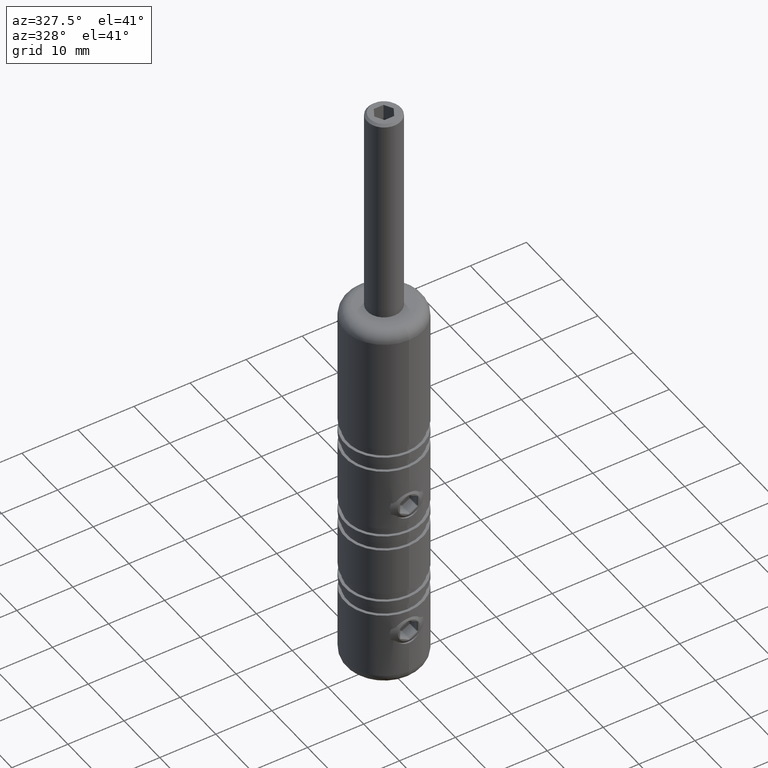
[diagram: clean part render]
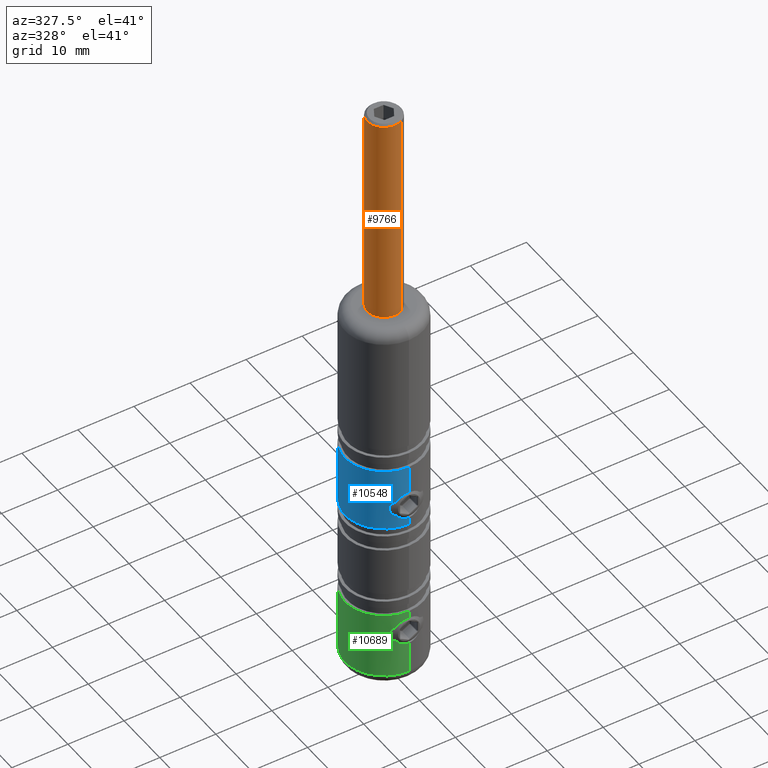
[diagram: same view with three faces highlighted in distinct colors, each labeled with its STEP entity id]
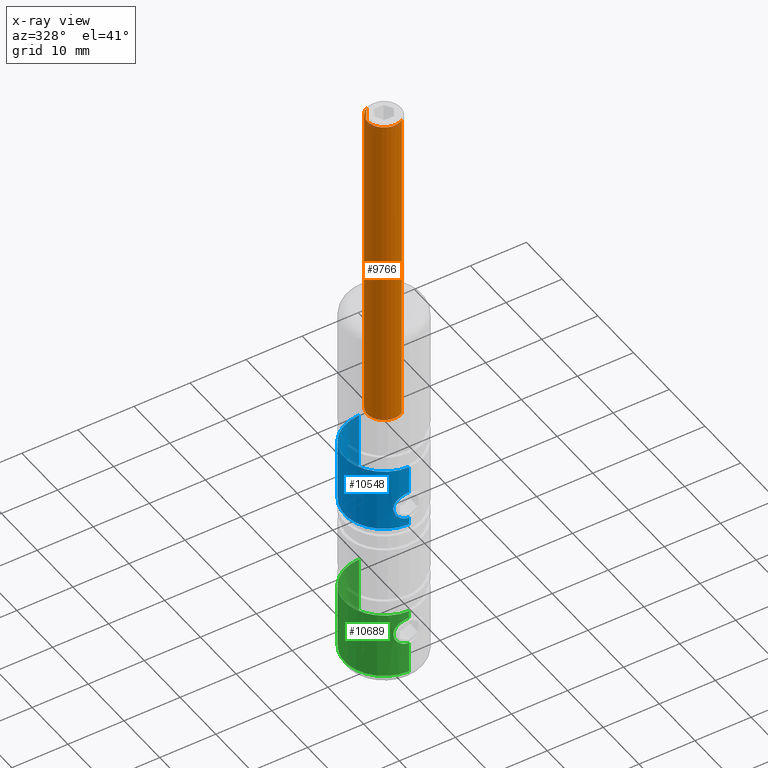
[diagram: x-ray of the same camera — body ghosted, the three highlighted faces saturated]
A machine part, auxiliary view with three faces highlighted in distinct colors.
The next image is the same camera in x-ray (body ghosted, the three faces saturated) — at least one of them is partly hidden behind the body in this view.
Their STEP definitions:

[orange] entity #9766 — the highlighted cylindrical surface (edge-blend (fillet) strip) has radius 3 mm, axis along (0, 0, 1).
#64 = DIRECTION ( 'NONE',  ( -1.000000000000000000, 0.0000000000000000000, 0.0000000000000000000 ) ) ;
#600 = CIRCLE ( 'NONE', #2382, 3.000000000000000000 ) ;
#644 = CARTESIAN_POINT ( 'NONE',  ( 3.000000000000000000, 0.0000000000000000000, -58.75000000000000000 ) ) ;
#971 = DIRECTION ( 'NONE',  ( 1.000000000000000000, 0.0000000000000000000, 0.0000000000000000000 ) ) ;
#1038 = CARTESIAN_POINT ( 'NONE',  ( 0.0000000000000000000, 0.0000000000000000000, -58.75000000000000000 ) ) ;
#2249 = DIRECTION ( 'NONE',  ( -0.0000000000000000000, -0.0000000000000000000, 1.000000000000000000 ) ) ;
#2382 = AXIS2_PLACEMENT_3D ( 'NONE', #12955, #5168, #64 ) ;
#2387 = DIRECTION ( 'NONE',  ( -0.0000000000000000000, -0.0000000000000000000, 1.000000000000000000 ) ) ;
#2526 = CYLINDRICAL_SURFACE ( 'NONE', #4589, 3.000000000000000000 ) ;
#3692 = DIRECTION ( 'NONE',  ( -0.0000000000000000000, -0.0000000000000000000, 1.000000000000000000 ) ) ;
#4059 = EDGE_CURVE ( 'NONE', #11626, #13936, #600, .T. ) ;
#4589 = AXIS2_PLACEMENT_3D ( 'NONE', #8961, #16824, #11760 ) ;
#5168 = DIRECTION ( 'NONE',  ( 0.0000000000000000000, 0.0000000000000000000, -1.000000000000000000 ) ) ;
#5259 = AXIS2_PLACEMENT_3D ( 'NONE', #1038, #3692, #971 ) ;
#5452 = ORIENTED_EDGE ( 'NONE', *, *, #10926, .T. ) ;
#5901 = ORIENTED_EDGE ( 'NONE', *, *, #10411, .T. ) ;
#5991 = LINE ( 'NONE', #7425, #10035 ) ;
#6250 = VERTEX_POINT ( 'NONE', #16569 ) ;
#6269 = ORIENTED_EDGE ( 'NONE', *, *, #9319, .F. ) ;
#6461 = ORIENTED_EDGE ( 'NONE', *, *, #4059, .T. ) ;
#7425 = CARTESIAN_POINT ( 'NONE',  ( 3.000000000000000000, 0.0000000000000000000, 0.0000000000000000000 ) ) ;
#8961 = CARTESIAN_POINT ( 'NONE',  ( 0.0000000000000000000, 0.0000000000000000000, 0.0000000000000000000 ) ) ;
#9260 = EDGE_LOOP ( 'NONE', ( #6269, #5901, #5452, #6461 ) ) ;
#9319 = EDGE_CURVE ( 'NONE', #6250, #13936, #9526, .T. ) ;
#9526 = LINE ( 'NONE', #12882, #16687 ) ;
#9766 = ADVANCED_FACE ( 'NONE', ( #13326 ), #2526, .T. ) ;
#10035 = VECTOR ( 'NONE', #2249, 1000.000000000000000 ) ;
#10239 = CIRCLE ( 'NONE', #5259, 3.000000000000000000 ) ;
#10411 = EDGE_CURVE ( 'NONE', #6250, #14971, #10239, .T. ) ;
#10926 = EDGE_CURVE ( 'NONE', #14971, #11626, #5991, .T. ) ;
#11626 = VERTEX_POINT ( 'NONE', #12357 ) ;
#11760 = DIRECTION ( 'NONE',  ( 1.000000000000000000, 0.0000000000000000000, 0.0000000000000000000 ) ) ;
#12357 = CARTESIAN_POINT ( 'NONE',  ( 3.000000000000000000, 0.0000000000000000000, -0.4000000000000015200 ) ) ;
#12882 = CARTESIAN_POINT ( 'NONE',  ( -3.000000000000000000, 3.673940397442059900E-016, 0.0000000000000000000 ) ) ;
#12955 = CARTESIAN_POINT ( 'NONE',  ( 0.0000000000000000000, 0.0000000000000000000, -0.4000000000000015200 ) ) ;
#13326 = FACE_OUTER_BOUND ( 'NONE', #9260, .T. ) ;
#13755 = CARTESIAN_POINT ( 'NONE',  ( -3.000000000000000000, 3.673940397442059900E-016, -0.4000000000000015200 ) ) ;
#13936 = VERTEX_POINT ( 'NONE', #13755 ) ;
#14971 = VERTEX_POINT ( 'NONE', #644 ) ;
#16569 = CARTESIAN_POINT ( 'NONE',  ( -3.000000000000000000, 3.673940397442059900E-016, -58.75000000000000000 ) ) ;
#16687 = VECTOR ( 'NONE', #2387, 1000.000000000000000 ) ;
#16824 = DIRECTION ( 'NONE',  ( -0.0000000000000000000, -0.0000000000000000000, 1.000000000000000000 ) ) ;

[blue] entity #10548 — the highlighted cylindrical surface (partial cylindrical patch) has radius 7 mm, axis along (0, 0, 1).
#86 = DIRECTION ( 'NONE',  ( -0.0000000000000000000, 5.987083850887820200E-017, 1.000000000000000000 ) ) ;
#120 = CARTESIAN_POINT ( 'NONE',  ( 0.0000000000000000000, -6.999999999999982200, -2.350000000000001400 ) ) ;
#136 = VERTEX_POINT ( 'NONE', #16595 ) ;
#191 = CARTESIAN_POINT ( 'NONE',  ( -2.182616585610912100, -6.652348402511699500, -1.111729387293352700 ) ) ;
#239 = LINE ( 'NONE', #4779, #11422 ) ;
#301 = CARTESIAN_POINT ( 'NONE',  ( -1.986513075921680000, -6.712875637094597000, 1.676451359799915100 ) ) ;
#348 = DIRECTION ( 'NONE',  ( -0.0000000000000000000, 5.987083850887820200E-017, 1.000000000000000000 ) ) ;
#357 = CARTESIAN_POINT ( 'NONE',  ( -2.418957270324506600, -6.568853193062357900, 0.8023704080797742200 ) ) ;
#406 = CARTESIAN_POINT ( 'NONE',  ( -1.997143572992787100, -6.713209561779717800, -1.388159018871960400 ) ) ;
#604 = EDGE_LOOP ( 'NONE', ( #10581, #9806, #16229, #1986, #14866, #16748 ) ) ;
#873 = DIRECTION ( 'NONE',  ( -0.0000000000000000000, 5.987083850887820200E-017, 1.000000000000000000 ) ) ;
#950 = AXIS2_PLACEMENT_3D ( 'NONE', #11561, #10115, #1099 ) ;
#951 = VERTEX_POINT ( 'NONE', #11612 ) ;
#1099 = DIRECTION ( 'NONE',  ( 0.0000000000000000000, -1.000000000000000000, 0.0000000000000000000 ) ) ;
#1111 = AXIS2_PLACEMENT_3D ( 'NONE', #5505, #348, #4219 ) ;
#1448 = VERTEX_POINT ( 'NONE', #15639 ) ;
#1522 = CARTESIAN_POINT ( 'NONE',  ( -0.8113121982069012600, -6.954498449641809200, -2.220354809019988300 ) ) ;
#1573 = VECTOR ( 'NONE', #4252, 1000.000000000000000 ) ;
#1637 = CARTESIAN_POINT ( 'NONE',  ( -2.167036636351883600, -6.656792451069414100, 1.407076040401511200 ) ) ;
#1690 = CARTESIAN_POINT ( 'NONE',  ( -0.8102109664719896500, -6.954611786350691100, 2.520677416910019500 ) ) ;
#1896 = FACE_OUTER_BOUND ( 'NONE', #604, .T. ) ;
#1928 = VERTEX_POINT ( 'NONE', #11458 ) ;
#1986 = ORIENTED_EDGE ( 'NONE', *, *, #16267, .T. ) ;
#2001 = VERTEX_POINT ( 'NONE', #8824 ) ;
#2498 = CARTESIAN_POINT ( 'NONE',  ( 0.0000000000000000000, -6.999999999999982200, -2.350000000000001400 ) ) ;
#3207 = LINE ( 'NONE', #10984, #1573 ) ;
#4174 = CARTESIAN_POINT ( 'NONE',  ( -2.500086800412541600, -6.538315226349094900, 0.3132977657665060900 ) ) ;
#4219 = DIRECTION ( 'NONE',  ( 0.0000000000000000000, -1.000000000000000000, 6.195440985631470100E-017 ) ) ;
#4228 = CARTESIAN_POINT ( 'NONE',  ( -1.798192403797702300E-019, -6.999999999999982200, 2.649999999999993200 ) ) ;
#4252 = DIRECTION ( 'NONE',  ( -0.0000000000000000000, 5.987083850887820200E-017, 1.000000000000000000 ) ) ;
#4779 = CARTESIAN_POINT ( 'NONE',  ( 8.572527594031448500E-016, 6.999999999999980500, 35.00000000000000000 ) ) ;
#5396 = CARTESIAN_POINT ( 'NONE',  ( -0.6517530939081327400, -6.971454749619991500, -2.269109380965464800 ) ) ;
#5457 = CARTESIAN_POINT ( 'NONE',  ( -1.256655774511398000, -6.887662783791753000, -2.017343951924943200 ) ) ;
#5505 = CARTESIAN_POINT ( 'NONE',  ( 0.0000000000000000000, -2.317001450293587300E-015, -3.700000000000009100 ) ) ;
#5514 = CARTESIAN_POINT ( 'NONE',  ( -2.483724230319996000, -6.544639652285172600, -0.1790933315932443600 ) ) ;
#5708 = EDGE_CURVE ( 'NONE', #136, #9869, #7180, .T. ) ;
#6644 = CARTESIAN_POINT ( 'NONE',  ( -2.483487897825190900, -6.544728749842668100, 0.4804985421295853700 ) ) ;
#6698 = CARTESIAN_POINT ( 'NONE',  ( -2.371248968516985300, -6.586477601639736600, 0.9589297162319370100 ) ) ;
#6753 = CARTESIAN_POINT ( 'NONE',  ( -2.244461535863836200, -6.630754201568819000, 1.263364886514609400 ) ) ;
#6789 = EDGE_CURVE ( 'NONE', #2001, #136, #9366, .T. ) ;
#7180 = LINE ( 'NONE', #15229, #9594 ) ;
#7941 = CARTESIAN_POINT ( 'NONE',  ( -0.6540777655606432300, -6.971270671019898800, 2.568582956134533000 ) ) ;
#7992 = CARTESIAN_POINT ( 'NONE',  ( -0.3297201420311631200, -6.994120181978715300, 2.633675878017138300 ) ) ;
#8166 = CARTESIAN_POINT ( 'NONE',  ( -1.652205860208955500, -6.803257230850213100, 2.033237980439071000 ) ) ;
#8565 = DIRECTION ( 'NONE',  ( -0.0000000000000000000, 5.987083850887820200E-017, 1.000000000000000000 ) ) ;
#8824 = CARTESIAN_POINT ( 'NONE',  ( 8.572527594031448500E-016, 6.999999999999978700, -3.700000000000009100 ) ) ;
#9353 = CARTESIAN_POINT ( 'NONE',  ( -2.418985510736147800, -6.568843378357456700, -0.5024550344861887800 ) ) ;
#9366 = CIRCLE ( 'NONE', #1111, 6.999999999999981300 ) ;
#9457 = CARTESIAN_POINT ( 'NONE',  ( -1.257255898599280300, -6.887546679547236600, 2.316967738745832100 ) ) ;
#9594 = VECTOR ( 'NONE', #8565, 1000.000000000000000 ) ;
#9806 = ORIENTED_EDGE ( 'NONE', *, *, #6789, .T. ) ;
#9869 = VERTEX_POINT ( 'NONE', #120 ) ;
#10115 = DIRECTION ( 'NONE',  ( -0.0000000000000000000, 5.987083850887820200E-017, 1.000000000000000000 ) ) ;
#10339 = CARTESIAN_POINT ( 'NONE',  ( -0.1666654329739605500, -6.999999999999982200, -2.350000000000001400 ) ) ;
#10463 = AXIS2_PLACEMENT_3D ( 'NONE', #12871, #86, #14326 ) ;
#10548 = ADVANCED_FACE ( 'NONE', ( #1896 ), #15738, .T. ) ;
#10581 = ORIENTED_EDGE ( 'NONE', *, *, #13452, .F. ) ;
#10739 = CARTESIAN_POINT ( 'NONE',  ( -0.1641597229444208300, -6.999999999999981300, 2.649999999999992800 ) ) ;
#10984 = CARTESIAN_POINT ( 'NONE',  ( 0.0000000000000000000, -6.999999999999980500, 35.00000000000000000 ) ) ;
#11422 = VECTOR ( 'NONE', #873, 1000.000000000000000 ) ;
#11458 = CARTESIAN_POINT ( 'NONE',  ( 8.572527594031448500E-016, 6.999999999999977800, 7.699999999999998400 ) ) ;
#11465 = B_SPLINE_CURVE_WITH_KNOTS ( 'NONE', 3,
 ( #2498, #10339, #14444, #5396, #1522, #13257, #5457, #12059, #15729, #406, #191, #15973, #9353, #5514, #11999, #4174, #6644, #357, #6698, #6753, #1637, #301, #15913, #8166, #15788, #9457, #13132, #1690, #7941, #7992, #10739, #4228 ),
 .UNSPECIFIED., .F., .F.,
 ( 4, 2, 2, 2, 2, 2, 2, 2, 2, 2, 2, 2, 2, 2, 2, 4 ),
 ( 0.0000000000000000000, 0.0004926113832447588500, 0.0009852227664895177000, 0.001477834149734276800, 0.001970445532979035400, 0.002955668299468552200, 0.003448279682713311100, 0.003940891065958069100, 0.004433502449202827500, 0.004926113832447586800, 0.005418725215692345200, 0.005911336598937103600, 0.006403947982181863700, 0.006896559365426622100, 0.007389170748671381400, 0.007881782131916139800 ),
 .UNSPECIFIED. ) ;
#11561 = CARTESIAN_POINT ( 'NONE',  ( 0.0000000000000000000, -1.634473891292375600E-015, 7.699999999999998400 ) ) ;
#11612 = CARTESIAN_POINT ( 'NONE',  ( -1.798192403797702300E-019, -6.999999999999982200, 2.649999999999993200 ) ) ;
#11999 = CARTESIAN_POINT ( 'NONE',  ( -2.499912498922765900, -6.538381872178707300, -0.01594477283448985900 ) ) ;
#12059 = CARTESIAN_POINT ( 'NONE',  ( -1.527415625474456000, -6.832721556297993700, -1.835841143851880500 ) ) ;
#12871 = CARTESIAN_POINT ( 'NONE',  ( 0.0000000000000000000, -3.851859888774471700E-031, 35.00000000000000000 ) ) ;
#13132 = CARTESIAN_POINT ( 'NONE',  ( -1.111092826571013400, -6.912925548549028000, 2.395445602988652400 ) ) ;
#13257 = CARTESIAN_POINT ( 'NONE',  ( -1.113545017333396700, -6.912546105698077700, -2.094287614806861000 ) ) ;
#13452 = EDGE_CURVE ( 'NONE', #2001, #1928, #239, .T. ) ;
#14326 = DIRECTION ( 'NONE',  ( 0.0000000000000000000, -1.000000000000000000, 0.0000000000000000000 ) ) ;
#14444 = CARTESIAN_POINT ( 'NONE',  ( -0.3302835225427129300, -6.994060066667623600, -2.333502584502524300 ) ) ;
#14612 = CIRCLE ( 'NONE', #950, 6.999999999999979600 ) ;
#14866 = ORIENTED_EDGE ( 'NONE', *, *, #15891, .T. ) ;
#15229 = CARTESIAN_POINT ( 'NONE',  ( 0.0000000000000000000, -6.999999999999980500, 35.00000000000000000 ) ) ;
#15639 = CARTESIAN_POINT ( 'NONE',  ( 0.0000000000000000000, -6.999999999999981300, 7.699999999999998400 ) ) ;
#15729 = CARTESIAN_POINT ( 'NONE',  ( -1.654417258820098300, -6.802708637123692400, -1.731231628040283100 ) ) ;
#15738 = CYLINDRICAL_SURFACE ( 'NONE', #10463, 6.999999999999980500 ) ;
#15788 = CARTESIAN_POINT ( 'NONE',  ( -1.527369289322315900, -6.832725277042823300, 2.135846073934975400 ) ) ;
#15891 = EDGE_CURVE ( 'NONE', #951, #1448, #3207, .T. ) ;
#15913 = CARTESIAN_POINT ( 'NONE',  ( -1.881945351263202500, -6.743320758237986800, 1.803678079414452000 ) ) ;
#15973 = CARTESIAN_POINT ( 'NONE',  ( -2.370245848837739800, -6.586829527406433000, -0.6614053658334665400 ) ) ;
#16229 = ORIENTED_EDGE ( 'NONE', *, *, #5708, .T. ) ;
#16267 = EDGE_CURVE ( 'NONE', #9869, #951, #11465, .T. ) ;
#16595 = CARTESIAN_POINT ( 'NONE',  ( 0.0000000000000000000, -6.999999999999984000, -3.700000000000008600 ) ) ;
#16729 = EDGE_CURVE ( 'NONE', #1928, #1448, #14612, .T. ) ;
#16748 = ORIENTED_EDGE ( 'NONE', *, *, #16729, .F. ) ;

[green] entity #10689 — the highlighted cylindrical surface (partial cylindrical patch) has radius 7 mm, axis along (0, 0, 1).
#324 = CARTESIAN_POINT ( 'NONE',  ( -2.500086800412542100, -6.538315226349105600, -24.68670223423349300 ) ) ;
#484 = DIRECTION ( 'NONE',  ( -0.0000000000000000000, 5.987083850887820200E-017, 1.000000000000000000 ) ) ;
#608 = ORIENTED_EDGE ( 'NONE', *, *, #14199, .T. ) ;
#632 = CARTESIAN_POINT ( 'NONE',  ( -1.798191898926723000E-019, -6.999999999999995600, -22.35000000000000900 ) ) ;
#832 = EDGE_CURVE ( 'NONE', #8338, #9932, #16370, .T. ) ;
#905 = FACE_OUTER_BOUND ( 'NONE', #1144, .T. ) ;
#1144 = EDGE_LOOP ( 'NONE', ( #1770, #8280, #608, #9283, #7346, #14786 ) ) ;
#1419 = AXIS2_PLACEMENT_3D ( 'NONE', #4841, #13947, #15371 ) ;
#1548 = CARTESIAN_POINT ( 'NONE',  ( -1.256655774511397500, -6.887662783791766300, -27.01734395192493600 ) ) ;
#1575 = DIRECTION ( 'NONE',  ( -0.0000000000000000000, 5.987083850887820200E-017, 1.000000000000000000 ) ) ;
#1601 = CARTESIAN_POINT ( 'NONE',  ( -2.244461535863836200, -6.630754201568834100, -23.73663511348539100 ) ) ;
#1770 = ORIENTED_EDGE ( 'NONE', *, *, #15977, .F. ) ;
#2086 = CIRCLE ( 'NONE', #1419, 6.999999999999992000 ) ;
#2602 = VERTEX_POINT ( 'NONE', #13484 ) ;
#2739 = CARTESIAN_POINT ( 'NONE',  ( -1.113545017333396500, -6.912546105698083900, -27.09428761480684900 ) ) ;
#2794 = CARTESIAN_POINT ( 'NONE',  ( -2.182616585610913900, -6.652348402511712800, -26.11172938729335200 ) ) ;
#2856 = CARTESIAN_POINT ( 'NONE',  ( -1.997143572992786700, -6.713209561779727600, -26.38815901887195600 ) ) ;
#2915 = CARTESIAN_POINT ( 'NONE',  ( -0.8102109664719884300, -6.954611786350705300, -22.47932258308998100 ) ) ;
#3615 = VECTOR ( 'NONE', #15083, 1000.000000000000000 ) ;
#3919 = CARTESIAN_POINT ( 'NONE',  ( 0.0000000000000000000, -6.999999999999995600, -27.35000000000000900 ) ) ;
#3968 = CARTESIAN_POINT ( 'NONE',  ( -2.371248968516985300, -6.586477601639754400, -24.04107028376806500 ) ) ;
#4024 = CARTESIAN_POINT ( 'NONE',  ( -1.986513075921680500, -6.712875637094610300, -23.32354864020008000 ) ) ;
#4143 = CARTESIAN_POINT ( 'NONE',  ( -2.483724230319995100, -6.544639652285186000, -25.17909333159324300 ) ) ;
#4196 = CARTESIAN_POINT ( 'NONE',  ( -1.527415625474456200, -6.832721556298007000, -26.83584114385187600 ) ) ;
#4691 = VERTEX_POINT ( 'NONE', #6378 ) ;
#4841 = CARTESIAN_POINT ( 'NONE',  ( 0.0000000000000000000, -4.071217018603719000E-015, -33.00000000000000000 ) ) ;
#5094 = CARTESIAN_POINT ( 'NONE',  ( -0.1666654329739610300, -6.999999999999997300, -27.35000000000001600 ) ) ;
#5171 = AXIS2_PLACEMENT_3D ( 'NONE', #6850, #1575, #6697 ) ;
#5341 = EDGE_CURVE ( 'NONE', #10415, #7838, #2086, .T. ) ;
#5425 = CARTESIAN_POINT ( 'NONE',  ( -1.257255898599277200, -6.887546679547252600, -22.68303226125416600 ) ) ;
#5542 = CARTESIAN_POINT ( 'NONE',  ( -0.6517530939081326300, -6.971454749620002100, -27.26910938096546700 ) ) ;
#5913 = CIRCLE ( 'NONE', #9367, 6.999999999999985800 ) ;
#6289 = CARTESIAN_POINT ( 'NONE',  ( 0.0000000000000000000, -6.999999999999995600, -27.35000000000000900 ) ) ;
#6378 = CARTESIAN_POINT ( 'NONE',  ( 0.0000000000000000000, -6.999999999999988500, -21.00000000000000400 ) ) ;
#6614 = CARTESIAN_POINT ( 'NONE',  ( -2.418985510736147800, -6.568843378357472700, -25.50245503448620000 ) ) ;
#6629 = CARTESIAN_POINT ( 'NONE',  ( -1.798191898926723000E-019, -6.999999999999995600, -22.35000000000000900 ) ) ;
#6697 = DIRECTION ( 'NONE',  ( 0.0000000000000000000, -1.000000000000000000, 0.0000000000000000000 ) ) ;
#6727 = DIRECTION ( 'NONE',  ( 0.0000000000000000000, -1.000000000000000000, 0.0000000000000000000 ) ) ;
#6850 = CARTESIAN_POINT ( 'NONE',  ( 0.0000000000000000000, -3.851859888774471700E-031, 35.00000000000000000 ) ) ;
#6962 = DIRECTION ( 'NONE',  ( -0.0000000000000000000, 5.987083850887820200E-017, 1.000000000000000000 ) ) ;
#7346 = ORIENTED_EDGE ( 'NONE', *, *, #7593, .T. ) ;
#7452 = CARTESIAN_POINT ( 'NONE',  ( 0.0000000000000000000, -6.999999999999992000, 35.00000000000000000 ) ) ;
#7593 = EDGE_CURVE ( 'NONE', #9932, #4691, #8347, .T. ) ;
#7736 = CARTESIAN_POINT ( 'NONE',  ( -0.3297201420311622300, -6.994120181978729500, -22.36632412198285600 ) ) ;
#7838 = VERTEX_POINT ( 'NONE', #13746 ) ;
#7908 = CARTESIAN_POINT ( 'NONE',  ( -2.418957270324506600, -6.568853193062373000, -24.19762959192022600 ) ) ;
#8017 = CARTESIAN_POINT ( 'NONE',  ( -2.370245848837741100, -6.586829527406445500, -25.66140536583346700 ) ) ;
#8119 = CARTESIAN_POINT ( 'NONE',  ( -0.1641597229444201100, -6.999999999999994700, -22.35000000000000500 ) ) ;
#8280 = ORIENTED_EDGE ( 'NONE', *, *, #5341, .T. ) ;
#8286 = LINE ( 'NONE', #8577, #3615 ) ;
#8338 = VERTEX_POINT ( 'NONE', #6289 ) ;
#8347 = LINE ( 'NONE', #7452, #12045 ) ;
#8577 = CARTESIAN_POINT ( 'NONE',  ( 8.572527594031463300E-016, 6.999999999999992000, 35.00000000000000000 ) ) ;
#8603 = EDGE_CURVE ( 'NONE', #2602, #4691, #5913, .T. ) ;
#8917 = DIRECTION ( 'NONE',  ( -0.0000000000000000000, 5.987083850887820200E-017, 1.000000000000000000 ) ) ;
#9211 = CARTESIAN_POINT ( 'NONE',  ( -0.8113121982069014800, -6.954498449641820700, -27.22035480901998700 ) ) ;
#9283 = ORIENTED_EDGE ( 'NONE', *, *, #832, .T. ) ;
#9322 = CARTESIAN_POINT ( 'NONE',  ( 0.0000000000000000000, -3.352766956497180300E-015, -21.00000000000000400 ) ) ;
#9367 = AXIS2_PLACEMENT_3D ( 'NONE', #9322, #484, #6727 ) ;
#9932 = VERTEX_POINT ( 'NONE', #6629 ) ;
#10110 = CARTESIAN_POINT ( 'NONE',  ( 8.572527594031463300E-016, 6.999999999999987600, -33.00000000000000000 ) ) ;
#10415 = VERTEX_POINT ( 'NONE', #10110 ) ;
#10652 = CARTESIAN_POINT ( 'NONE',  ( -1.654417258820098000, -6.802708637123704000, -26.73123162804028800 ) ) ;
#10689 = ADVANCED_FACE ( 'NONE', ( #905 ), #16367, .T. ) ;
#11805 = CARTESIAN_POINT ( 'NONE',  ( -2.499912498922764600, -6.538381872178721500, -25.01594477283449400 ) ) ;
#11866 = CARTESIAN_POINT ( 'NONE',  ( -2.167036636351883100, -6.656792451069429200, -23.59292395959849700 ) ) ;
#11911 = CARTESIAN_POINT ( 'NONE',  ( -1.652205860208954900, -6.803257230850227300, -22.96676201956092800 ) ) ;
#12045 = VECTOR ( 'NONE', #8917, 1000.000000000000000 ) ;
#13159 = CARTESIAN_POINT ( 'NONE',  ( -1.881945351263201800, -6.743320758238001000, -23.19632192058555000 ) ) ;
#13222 = CARTESIAN_POINT ( 'NONE',  ( -1.527369289322311900, -6.832725277042836600, -22.86415392606502600 ) ) ;
#13327 = CARTESIAN_POINT ( 'NONE',  ( -2.483487897825190000, -6.544728749842681400, -24.51950145787041900 ) ) ;
#13484 = CARTESIAN_POINT ( 'NONE',  ( 8.572527594031459400E-016, 6.999999999999982200, -21.00000000000000400 ) ) ;
#13713 = CARTESIAN_POINT ( 'NONE',  ( -0.6540777655606422300, -6.971270671019913000, -22.43141704386547300 ) ) ;
#13746 = CARTESIAN_POINT ( 'NONE',  ( 0.0000000000000000000, -6.999999999999996400, -33.00000000000000000 ) ) ;
#13947 = DIRECTION ( 'NONE',  ( -0.0000000000000000000, 5.987083850887820200E-017, 1.000000000000000000 ) ) ;
#14049 = VECTOR ( 'NONE', #6962, 1000.000000000000000 ) ;
#14199 = EDGE_CURVE ( 'NONE', #7838, #8338, #15655, .T. ) ;
#14314 = CARTESIAN_POINT ( 'NONE',  ( 0.0000000000000000000, -6.999999999999992000, 35.00000000000000000 ) ) ;
#14526 = CARTESIAN_POINT ( 'NONE',  ( -1.111092826571012000, -6.912925548549040400, -22.60455439701135200 ) ) ;
#14786 = ORIENTED_EDGE ( 'NONE', *, *, #8603, .F. ) ;
#15083 = DIRECTION ( 'NONE',  ( -0.0000000000000000000, 5.987083850887820200E-017, 1.000000000000000000 ) ) ;
#15371 = DIRECTION ( 'NONE',  ( 0.0000000000000000000, -1.000000000000000000, 0.0000000000000000000 ) ) ;
#15496 = CARTESIAN_POINT ( 'NONE',  ( -0.3302835225427124800, -6.994060066667636000, -27.33350258450252600 ) ) ;
#15655 = LINE ( 'NONE', #14314, #14049 ) ;
#15977 = EDGE_CURVE ( 'NONE', #10415, #2602, #8286, .T. ) ;
#16367 = CYLINDRICAL_SURFACE ( 'NONE', #5171, 6.999999999999992000 ) ;
#16370 = B_SPLINE_CURVE_WITH_KNOTS ( 'NONE', 3,
 ( #3919, #5094, #15496, #5542, #9211, #2739, #1548, #4196, #10652, #2856, #2794, #8017, #6614, #4143, #11805, #324, #13327, #7908, #3968, #1601, #11866, #4024, #13159, #11911, #13222, #5425, #14526, #2915, #13713, #7736, #8119, #632 ),
 .UNSPECIFIED., .F., .F.,
 ( 4, 2, 2, 2, 2, 2, 2, 2, 2, 2, 2, 2, 2, 2, 2, 4 ),
 ( 0.0000000000000000000, 0.0004926113832447617800, 0.0009852227664895235500, 0.001477834149734285400, 0.001970445532979047100, 0.002955668299468564400, 0.003448279682713322800, 0.003940891065958081200, 0.004433502449202840500, 0.004926113832447598000, 0.005418725215692356400, 0.005911336598937115700, 0.006403947982181874100, 0.006896559365426631700, 0.007389170748671391000, 0.007881782131916150200 ),
 .UNSPECIFIED. ) ;